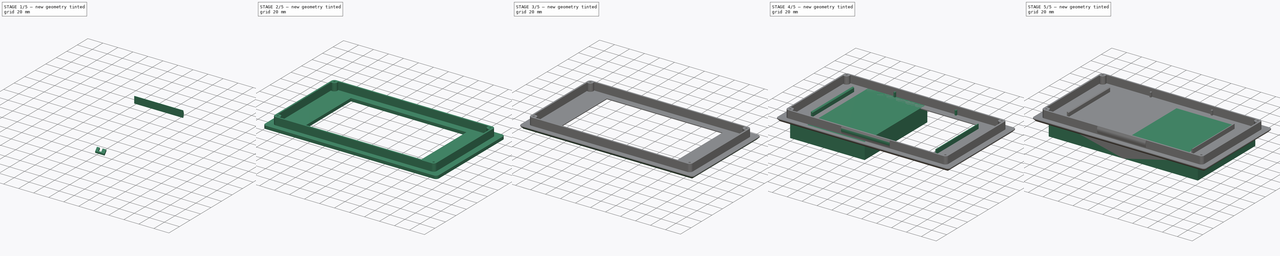
[diagram: build sequence overview — one tinted view per stage of 5, left to right]
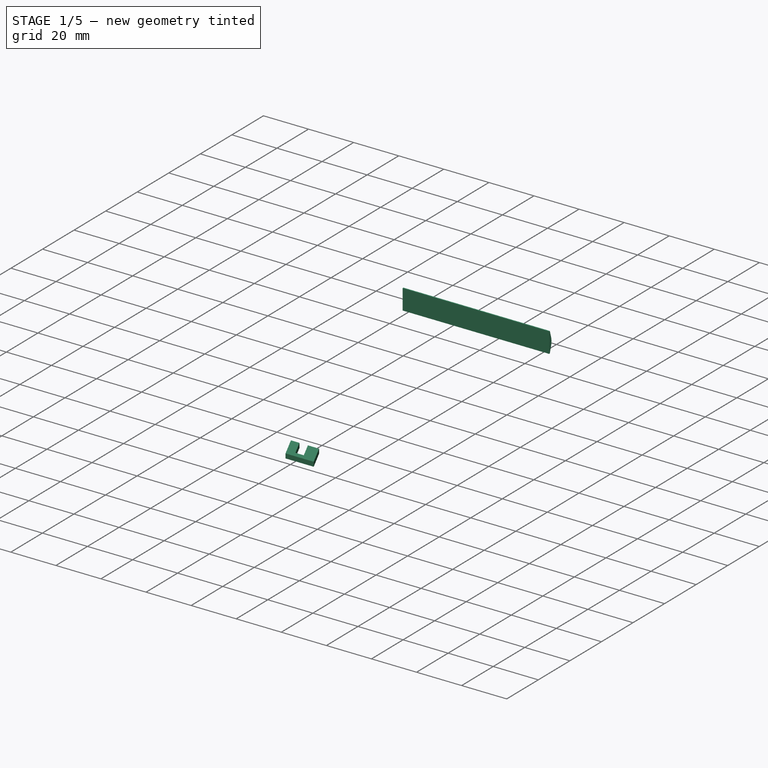
[diagram: stage 1 of 5 — iso view after this stage's code; geometry added in this stage tinted green]
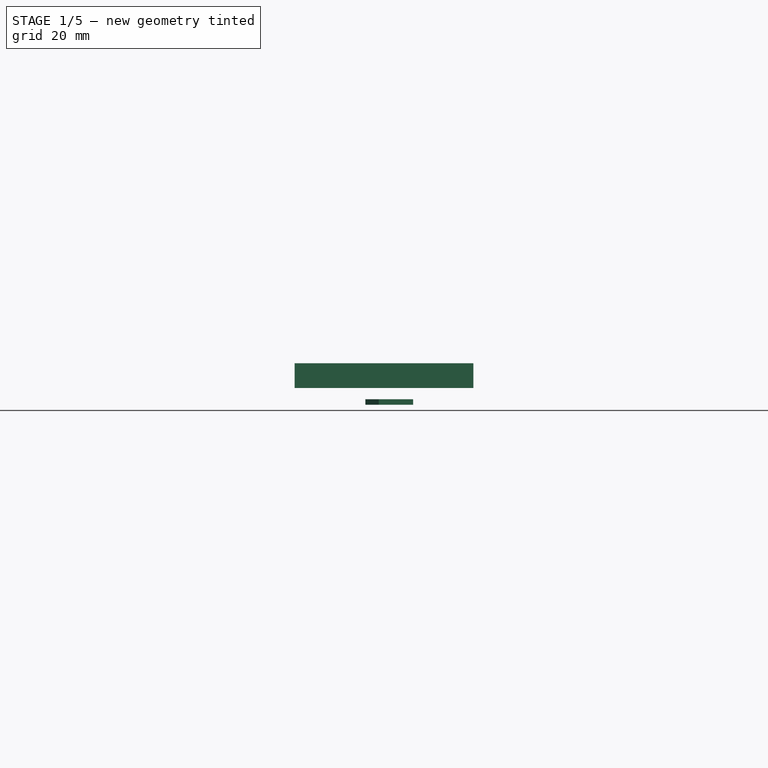
[diagram: stage 1 of 5 — front view after this stage's code; geometry added in this stage tinted green]
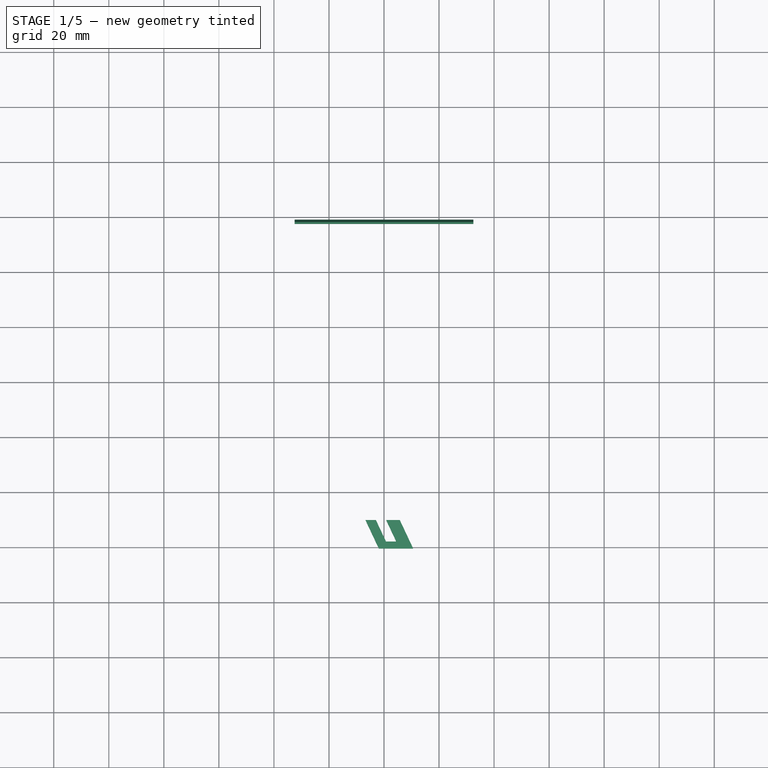
[diagram: stage 1 of 5 — top view after this stage's code; geometry added in this stage tinted green]
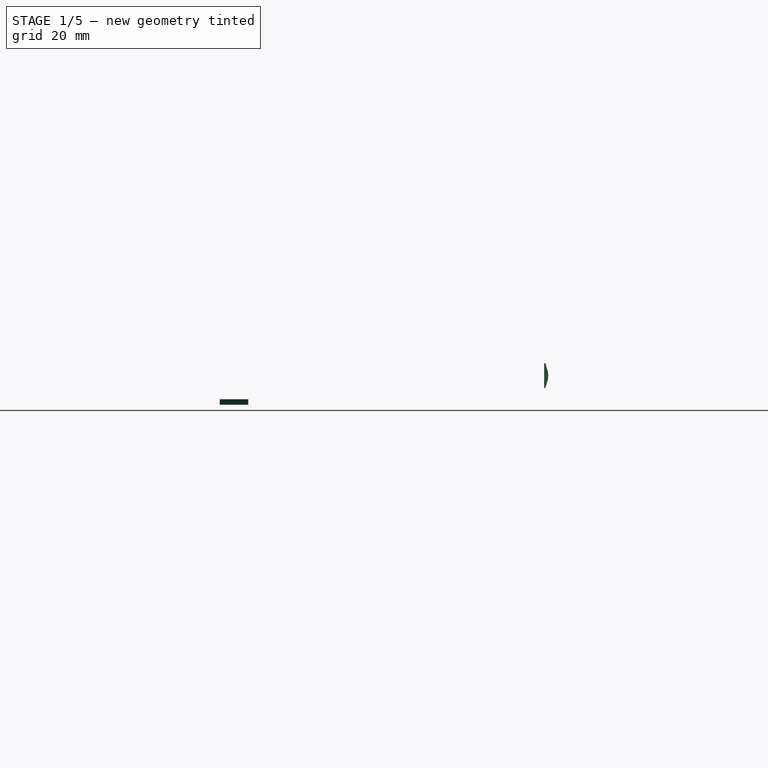
[diagram: stage 1 of 5 — right view after this stage's code; geometry added in this stage tinted green]
FCSTD DOCUMENT  (FreeCAD 0.17R6700 (Git))
Label: enclosure2_front
License: All rights reserved
LicenseURL: http://en.wikipedia.org/wiki/All_rights_reserved
objects: Sketcher::SketchObject×8, PartDesign::Pad×6, Part::Feature×3, Part::Chamfer×3, PartDesign::Pocket×2, Part::Mirroring×2, Part::MultiFuse×2, Part::MultiCommon×1, Part::Extrusion×1, Part::FeaturePython×1, Part::Cut×1
note: 38 computed .brp shape members not serialized (recipe doc carries the construction recipe); baked Part::Feature solids carry a one-line shape summary decoded from their .brp

FEATURE [Part::Feature] Face007
  shape: bbox 86.79 x 51.78 x 2e-07 mm, 1 faces, 0 solids (baked)
FEATURE [Part::Extrusion] Extrude007  label="uv_big"
  Base = -> Face007
  Dir = (0,0,10)
  Placement = pos=(53,0,-9) rot=(0,1,0;3.14159rad)
  Solid = false
FEATURE [Part::FeaturePython] Scale  label="uv_scaled"  # Draft clone (typed FeaturePython)
  Objects = -> [Extrude007]
  Placement = pos=(55,-48,-20.3) rot=(0,1,0;3.14159rad)
  Scale = (0.2,0.2,0.2)
FEATURE [Sketcher::SketchObject] Sketch009
  Placement = pos=(0,0,0) rot=(0.57735,0.57735,0.57735;2.0944rad)
  sketch-geometry (12):
    g0: ArcOfCircle CenterX=-59 CenterY=0 CenterZ=0 NormalX=0 NormalY=0 NormalZ=1 Radius=1 StartAngle=5.99079 EndAngle=6.28319
    g1: ArcOfCircle CenterX=-59 CenterY=-9 CenterZ=0 NormalX=0 NormalY=0 NormalZ=1 Radius=1 StartAngle=0 EndAngle=0.292393
    g2: LineSegment [constr] StartX=-58 StartY=0 StartZ=0 EndX=-58 EndY=-9 EndZ=0
    g3: LineSegment [constr] StartX=-59 StartY=-9 StartZ=0 EndX=-58 EndY=-9 EndZ=0
    g4: LineSegment StartX=-58.0424 StartY=-8.71176 StartZ=0 EndX=-58.7029 EndY=-6.51772 EndZ=0
    g5: LineSegment StartX=-58.0424 StartY=-0.288245 StartZ=0 EndX=-58.7029 EndY=-2.48226 EndZ=0
    g6: ArcOfCircle CenterX=-52 CenterY=-4.5 CenterZ=0 NormalX=0 NormalY=0 NormalZ=1 Radius=7 StartAngle=2.84919 EndAngle=3.43399
    g7: LineSegment [constr] StartX=-58 StartY=-4.5 StartZ=0 EndX=-52 EndY=-4.5 EndZ=0
    g8: LineSegment [constr] StartX=-59 StartY=0 StartZ=0 EndX=-59 EndY=-9 EndZ=0
    g9: LineSegment StartX=-58 StartY=-9 StartZ=0 EndX=-57.5 EndY=-9 EndZ=0
    g10: LineSegment StartX=-57.5 StartY=-9 StartZ=0 EndX=-57.5 EndY=0 EndZ=0
    g11: LineSegment StartX=-57.5 StartY=0 StartZ=0 EndX=-58 EndY=0 EndZ=0
  constraints (39):
    c: PointOnObject(g0,g-1)
    c: PointOnObject(g0,g-1)
    c: Coincident(g2,g0)
    c: Coincident(g2,g1)
    c: Vertical(g2)
    c: DistanceX(g0,g-1) = 58
    c: Equal(g1,g0)
    c: Coincident(g3,g1)
    c: Coincident(g3,g1)
    c: Horizontal(g3)
    c: Coincident(g4,g1)
    c: Coincident(g5,g0)
    c: Coincident(g6,g5)
    c: Coincident(g6,g4)
    c: Tangent(g4,g6)
    c: Tangent(g1,g4)
    c: Tangent(g5,g0)
    c: PointOnObject(g7,g2)
    c: Horizontal(g7)
    c: Symmetric(g1,g0,g7)
    c: PointOnObject(g6,g7)
    c: Coincident(g7,g6)
    c: PointOnObject(g8,g-1)
    c: Vertical(g8)
    c: DistanceX(g8,g0) = 1
    c: DistanceX(g7,g7) = 6
    c: PointOnObject(g8,g3)
    c: Tangent(g6,g8)
    c: Coincident(g1,g8)
    c: DistanceY(g8,g8) = 9
    c: Coincident(g9,g1)
    c: Horizontal(g9)
    c: Coincident(g10,g9)
    c: Vertical(g10)
    c: Coincident(g11,g10)
    c: Horizontal(g11)
    c: Coincident(g0,g11)
    c: DistanceX(g9,g9) = 0.5
    c: Tangent(g6,g5)
FEATURE [PartDesign::Pad] Pad005  label="Pad010"
  Length = 65
  Length2 = 100
  Midplane = true
  Placement = pos=(0,0,0) rot=(0.57735,0.57735,0.57735;2.0944rad)
  Sketch = -> Sketch009
  Type = 0
FEATURE [Part::Mirroring] Part__Mirroring001  label="Pad010 (Mirror #2)"
  Base = (0,0,0)
  Normal = (0,1,0)
  Source = -> Pad005
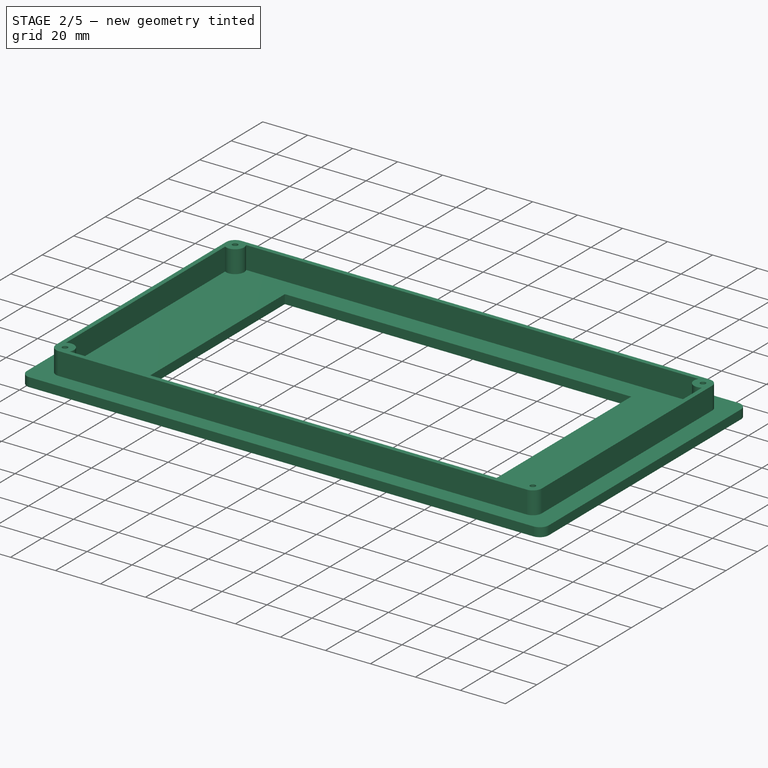
[diagram: stage 2 of 5 — iso view after this stage's code; geometry added in this stage tinted green]
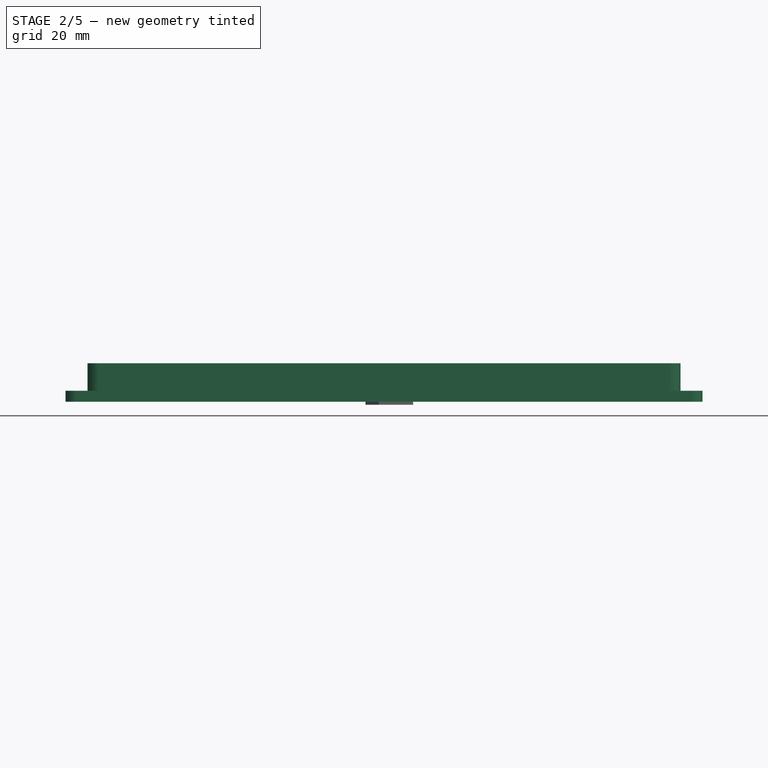
[diagram: stage 2 of 5 — front view after this stage's code; geometry added in this stage tinted green]
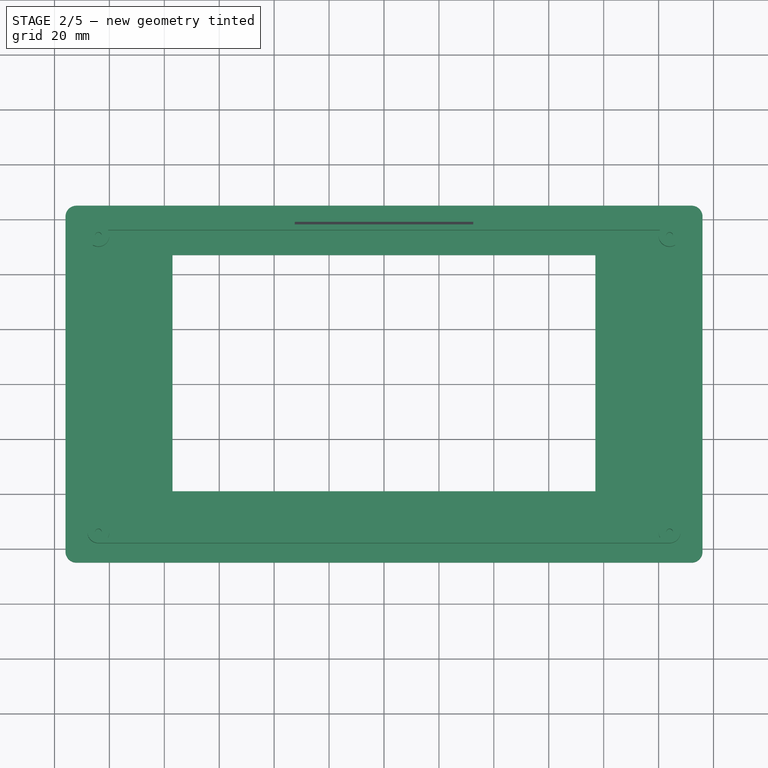
[diagram: stage 2 of 5 — top view after this stage's code; geometry added in this stage tinted green]
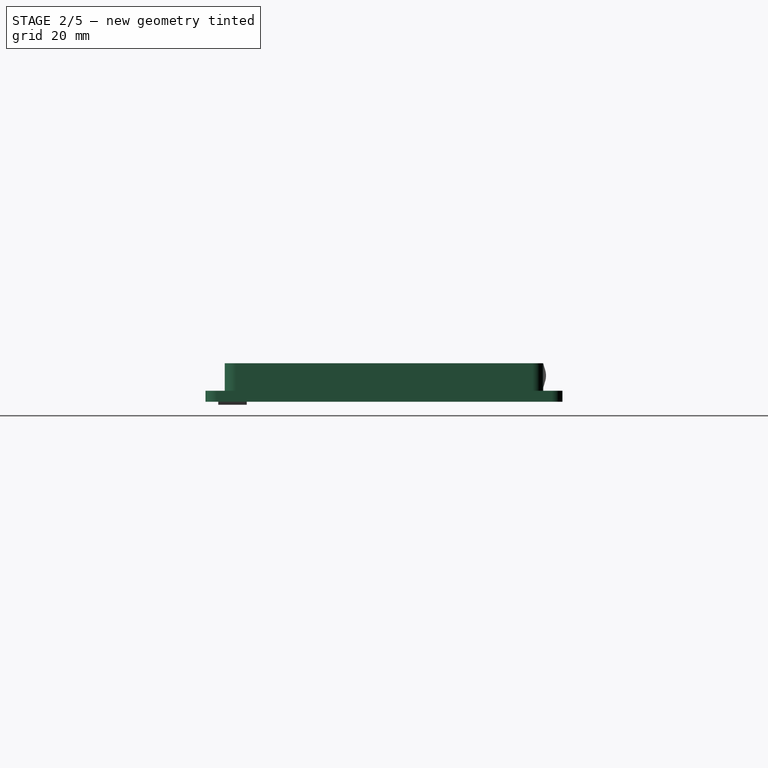
[diagram: stage 2 of 5 — right view after this stage's code; geometry added in this stage tinted green]
FEATURE [Sketcher::SketchObject] Sketch003
  sketch-geometry (8):
    g0: LineSegment StartX=-104 StartY=58 StartZ=0 EndX=104 EndY=58 EndZ=0
    g1: LineSegment StartX=108 StartY=54 StartZ=0 EndX=108 EndY=-54 EndZ=0
    g2: LineSegment StartX=104 StartY=-58 StartZ=0 EndX=-104 EndY=-58 EndZ=0
    g3: LineSegment StartX=-108 StartY=-54 StartZ=0 EndX=-108 EndY=54 EndZ=0
    g4: ArcOfCircle CenterX=104 CenterY=-54 CenterZ=0 NormalX=0 NormalY=0 NormalZ=1 Radius=4 StartAngle=4.71239 EndAngle=6.28319
    g5: ArcOfCircle CenterX=-104 CenterY=-54 CenterZ=0 NormalX=0 NormalY=0 NormalZ=1 Radius=4 StartAngle=3.14159 EndAngle=4.71239
    g6: ArcOfCircle CenterX=-104 CenterY=54 CenterZ=0 NormalX=0 NormalY=0 NormalZ=1 Radius=4 StartAngle=1.5708 EndAngle=3.14159
    g7: ArcOfCircle CenterX=104 CenterY=54 CenterZ=0 NormalX=0 NormalY=0 NormalZ=1 Radius=4 StartAngle=0 EndAngle=1.5708
  constraints (18):
    c: Horizontal(g2)
    c: Vertical(g1)
    c: Tangent(g1,g4) = 1.5708
    c: Tangent(g2,g4) = 1.5708
    c: Tangent(g2,g5) = 1.5708
    c: Tangent(g3,g5) = 1.5708
    c: Tangent(g3,g6) = 1.5708
    c: Tangent(g0,g6) = 1.5708
    c: Tangent(g0,g7) = 1.5708
    c: Tangent(g1,g7) = 1.5708
    c: Symmetric(g1,g3,g-2)
    c: Symmetric(g0,g2,g-1)
    c: Equal(g4,g7)
    c: Equal(g7,g6)
    c: Equal(g6,g5)
    c: Radius(g6) = 4
    c: DistanceY(g2,g0) = 116
    c: DistanceX(g3,g1) = 216
FEATURE [Part::Feature] Part__Feature  label="display"
  Placement = pos=(-76.92,-38.815,-10) rot=(0,0,1;0rad)
  shape: bbox 165 x 107 x 4.7 mm, 16 faces (baked)
FEATURE [Part::Feature] Part__Feature001  label="pcb"
  Placement = pos=(26.6612,-3.4798,0) rot=(0,0,1;3.14159rad)
  shape: bbox 87.31 x 61.33 x 37.48 mm, 5234 faces (baked)
FEATURE [PartDesign::Pad] Pad
  Length = 10
  Length2 = 100
  Reversed = true
  Sketch = -> Sketch003
  Type = 0
FEATURE [Sketcher::SketchObject] Sketch
  ExternalGeometry = -> [Pad]
  Support = -> Pad [Face9]
  sketch-geometry (20):
    g0: LineSegment StartX=-100.536 StartY=56 StartZ=0 EndX=100.536 EndY=56 EndZ=0
    g1: LineSegment StartX=106 StartY=50.5359 StartZ=0 EndX=106 EndY=-50.5359 EndZ=0
    g2: LineSegment StartX=100.536 StartY=-56 StartZ=0 EndX=-100.536 EndY=-56 EndZ=0
    g3: LineSegment StartX=-106 StartY=-50.5359 StartZ=0 EndX=-106 EndY=50.5359 EndZ=0
    g4: ArcOfCircle CenterX=-104 CenterY=54 CenterZ=0 NormalX=0 NormalY=0 NormalZ=1 Radius=4 StartAngle=4.18879 EndAngle=6.80678
    g5: ArcOfCircle CenterX=-104 CenterY=-54 CenterZ=0 NormalX=0 NormalY=0 NormalZ=1 Radius=4 StartAngle=5.75959 EndAngle=8.37758
    g6: ArcOfCircle CenterX=104 CenterY=-54 CenterZ=0 NormalX=0 NormalY=0 NormalZ=1 Radius=4 StartAngle=1.0472 EndAngle=3.66519
    g7: ArcOfCircle CenterX=104 CenterY=54 CenterZ=0 NormalX=0 NormalY=0 NormalZ=1 Radius=4 StartAngle=2.61799 EndAngle=5.23599
    g8: LineSegment [constr] StartX=104 StartY=54 StartZ=0 EndX=104 EndY=58 EndZ=0
    g9: LineSegment [constr] StartX=108 StartY=54 StartZ=0 EndX=104 EndY=54 EndZ=0
    g10: LineSegment [constr] StartX=104 StartY=-54 StartZ=0 EndX=108 EndY=-54 EndZ=0
    g11: LineSegment [constr] StartX=104 StartY=-54 StartZ=0 EndX=104 EndY=-58 EndZ=0
    g12: LineSegment [constr] StartX=-104 StartY=-58 StartZ=0 EndX=-104 EndY=-54 EndZ=0
    g13: LineSegment [constr] StartX=-108 StartY=-54 StartZ=0 EndX=-104 EndY=-54 EndZ=0
    g14: LineSegment [constr] StartX=-108 StartY=54 StartZ=0 EndX=-104 EndY=54 EndZ=0
    g15: LineSegment [constr] StartX=-104 StartY=58 StartZ=0 EndX=-104 EndY=54 EndZ=0
    g16: Circle CenterX=-104 CenterY=54 CenterZ=0 NormalX=0 NormalY=0 NormalZ=1 Radius=1.2
    g17: Circle CenterX=-104 CenterY=-54 CenterZ=0 NormalX=0 NormalY=0 NormalZ=1 Radius=1.2
    g18: Circle CenterX=104 CenterY=-54 CenterZ=0 NormalX=0 NormalY=0 NormalZ=1 Radius=1.2
    g19: Circle CenterX=104 CenterY=54 CenterZ=0 NormalX=0 NormalY=0 NormalZ=1 Radius=1.2
  constraints (52):
    c: Horizontal(g0)
    c: Vertical(g1)
    c: Horizontal(g2)
    c: Vertical(g3)
    c: Coincident(g4,g3)
    c: Coincident(g4,g0)
    c: Coincident(g5,g3)
    c: Coincident(g5,g2)
    c: Coincident(g6,g2)
    c: Coincident(g6,g1)
    c: Coincident(g7,g1)
    c: Coincident(g7,g0)
    c: Coincident(g8,g7)
    c: Coincident(g7,g9)
    c: Coincident(g9,g-6)
    c: Coincident(g8,g-3)
    c: Vertical(g8)
    c: Horizontal(g9)
    c: Coincident(g10,g6)
    c: Coincident(g10,g-6)
    c: Coincident(g11,g6)
    c: Vertical(g11)
    c: Coincident(g11,g-5)
    c: Horizontal(g10)
    c: Coincident(g12,g-5)
    c: Vertical(g12)
    c: Coincident(g13,g12)
    c: Horizontal(g13)
    c: Coincident(g13,g-4)
    c: Coincident(g5,g12)
    c: Coincident(g14,g-4)
    c: Coincident(g14,g4)
    c: Coincident(g15,g-3)
    c: Coincident(g15,g4)
    c: Horizontal(g14)
    c: Vertical(g15)
    c: Equal(g4,g5)
    c: Equal(g5,g6)
    c: Equal(g6,g7)
    c: Equal(g-7,g4)
    c: DistanceX(g14,g3) = 2
    c: DistanceY(g0,g15) = 2
    c: DistanceY(g12,g2) = 2
    c: DistanceX(g1,g10) = 2
    c: Coincident(g16,g4)
    c: Coincident(g19,g7)
    c: Equal(g19,g18)
    c: Equal(g18,g17)
    c: Equal(g17,g16)
    c: Coincident(g5,g17)
    c: Coincident(g6,g18)
    c: Radius(g19) = 1.2
FEATURE [PartDesign::Pocket] Pocket
  Length = 5
  Sketch = -> Sketch
  Type = 1
FEATURE [Sketcher::SketchObject] Sketch004
  ExternalGeometry = -> [Pocket]
  Placement = pos=(0,0,-10) rot=(1,0,0;3.14159rad)
  Support = -> Pocket [Face5]
  sketch-geometry (8):
    g0: LineSegment StartX=-112 StartY=65 StartZ=0 EndX=112 EndY=65 EndZ=0
    g1: LineSegment StartX=116 StartY=61 StartZ=0 EndX=116 EndY=-61 EndZ=0
    g2: LineSegment StartX=112 StartY=-65 StartZ=0 EndX=-112 EndY=-65 EndZ=0
    g3: LineSegment StartX=-116 StartY=-61 StartZ=0 EndX=-116 EndY=61 EndZ=0
    g4: ArcOfCircle CenterX=112 CenterY=-61 CenterZ=0 NormalX=0 NormalY=0 NormalZ=1 Radius=4 StartAngle=4.71239 EndAngle=6.28319
    g5: ArcOfCircle CenterX=-112 CenterY=-61 CenterZ=0 NormalX=0 NormalY=0 NormalZ=1 Radius=4 StartAngle=3.14159 EndAngle=4.71239
    g6: ArcOfCircle CenterX=-112 CenterY=61 CenterZ=0 NormalX=0 NormalY=0 NormalZ=1 Radius=4 StartAngle=1.5708 EndAngle=3.14159
    g7: ArcOfCircle CenterX=112 CenterY=61 CenterZ=0 NormalX=0 NormalY=0 NormalZ=1 Radius=4 StartAngle=0 EndAngle=1.5708
  constraints (20):
    c: Horizontal(g0)
    c: Horizontal(g2)
    c: Vertical(g1)
    c: Vertical(g3)
    c: Tangent(g1,g4) = 1.5708
    c: Tangent(g2,g4) = 1.5708
    c: Tangent(g3,g5) = 1.5708
    c: Tangent(g2,g5) = 1.5708
    c: Tangent(g3,g6) = 1.5708
    c: Tangent(g0,g6) = 1.5708
    c: Tangent(g0,g7) = 1.5708
    c: Tangent(g1,g7) = 1.5708
    c: Equal(g6,g5)
    c: Equal(g5,g4)
    c: Equal(g4,g7)
    c: DistanceY(g2,g-10) = 7
    c: DistanceY(g-7,g0) = 7
    c: DistanceX(g-9,g1) = 8
    c: DistanceX(g3,g-8) = 8
    c: Radius(g5) = 4
FEATURE [PartDesign::Pad] Pad001  label="Pad006"
  Length = 4
  Length2 = 100
  Sketch = -> Sketch004
  Type = 0
FEATURE [Sketcher::SketchObject] Sketch007
  Placement = pos=(0,0,-14) rot=(1,0,0;3.14159rad)
  Support = -> Pad001 [Face36]
  sketch-geometry (4):
    g0: LineSegment StartX=-77 StartY=39 StartZ=0 EndX=77 EndY=39 EndZ=0
    g1: LineSegment StartX=77 StartY=39 StartZ=0 EndX=77 EndY=-47 EndZ=0
    g2: LineSegment StartX=77 StartY=-47 StartZ=0 EndX=-77 EndY=-47 EndZ=0
    g3: LineSegment StartX=-77 StartY=-47 StartZ=0 EndX=-77 EndY=39 EndZ=0
  constraints (12):
    c: Coincident(g0,g1)
    c: Coincident(g1,g2)
    c: Coincident(g2,g3)
    c: Coincident(g3,g0)
    c: Horizontal(g0)
    c: Horizontal(g2)
    c: Vertical(g1)
    c: Vertical(g3)
    c: DistanceX(g2,g2) = 154
    c: DistanceY(g1,g1) = 86
    c: Symmetric(g1,g2,g-2)
    c: DistanceY(g2,g-1) = 47
FEATURE [PartDesign::Pocket] Pocket001
  Length = 5
  Sketch = -> Sketch007
  Type = 1
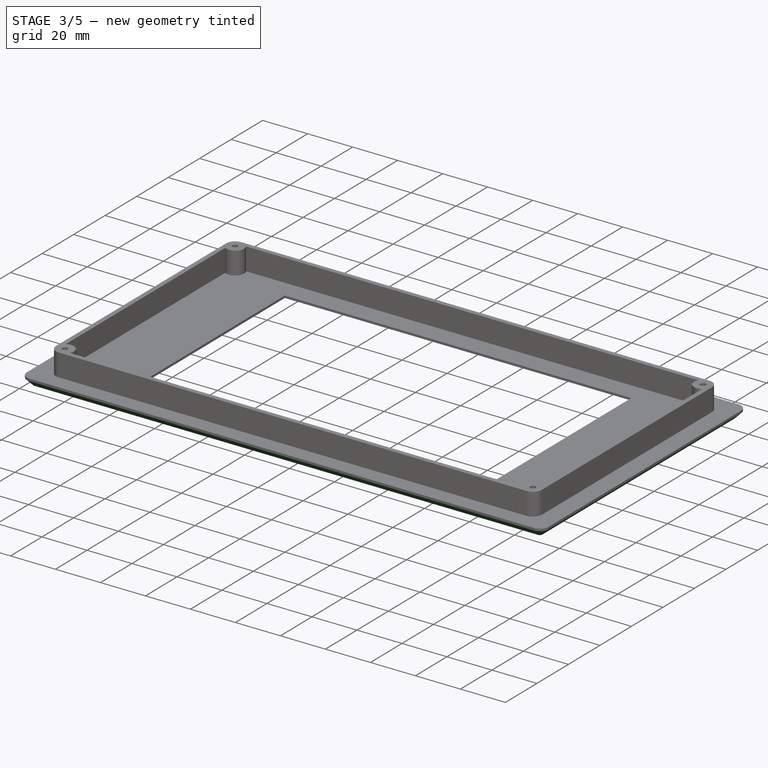
[diagram: stage 3 of 5 — iso view after this stage's code; geometry added in this stage tinted green]
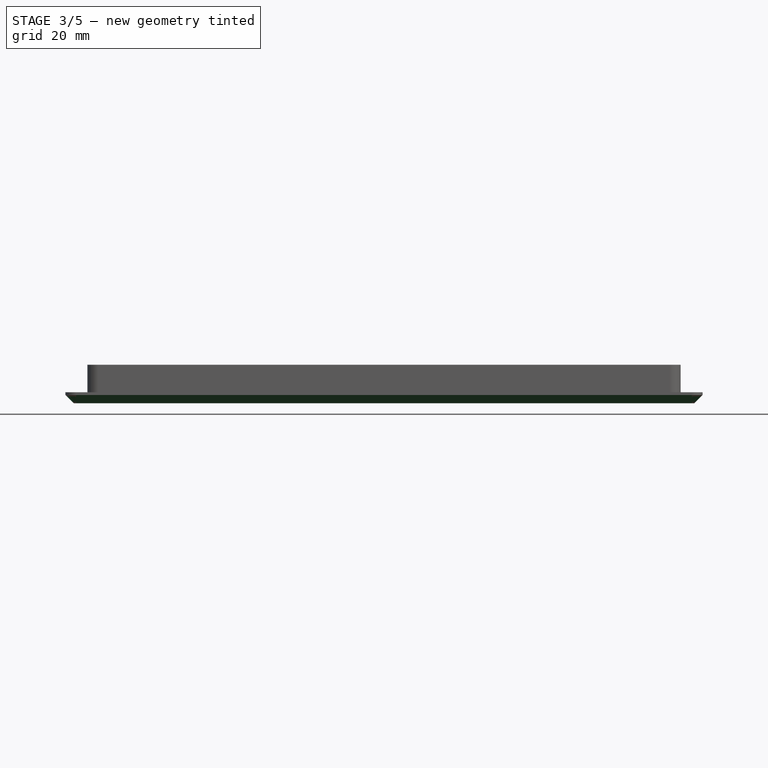
[diagram: stage 3 of 5 — front view after this stage's code; geometry added in this stage tinted green]
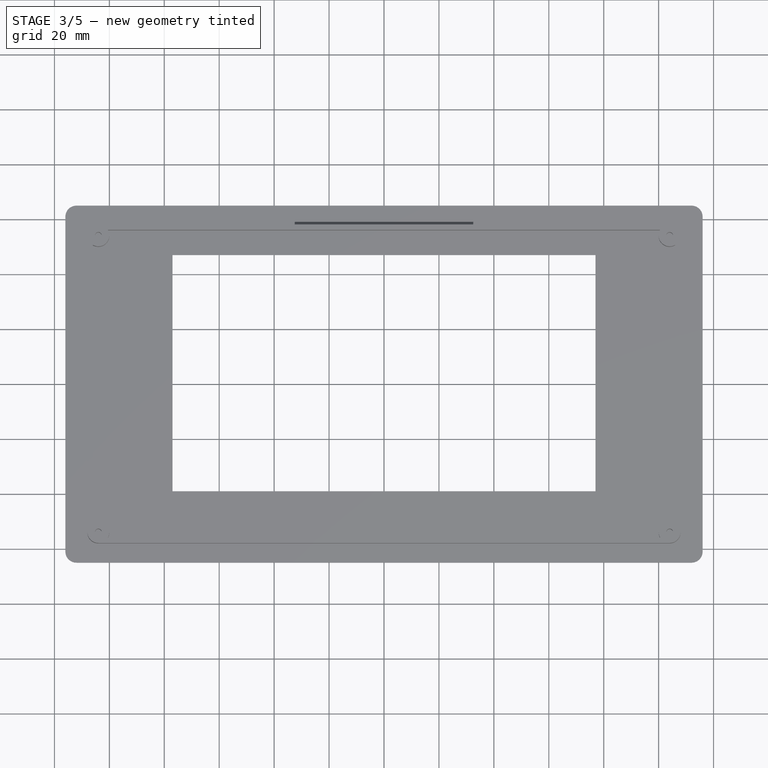
[diagram: stage 3 of 5 — top view after this stage's code; geometry added in this stage tinted green]
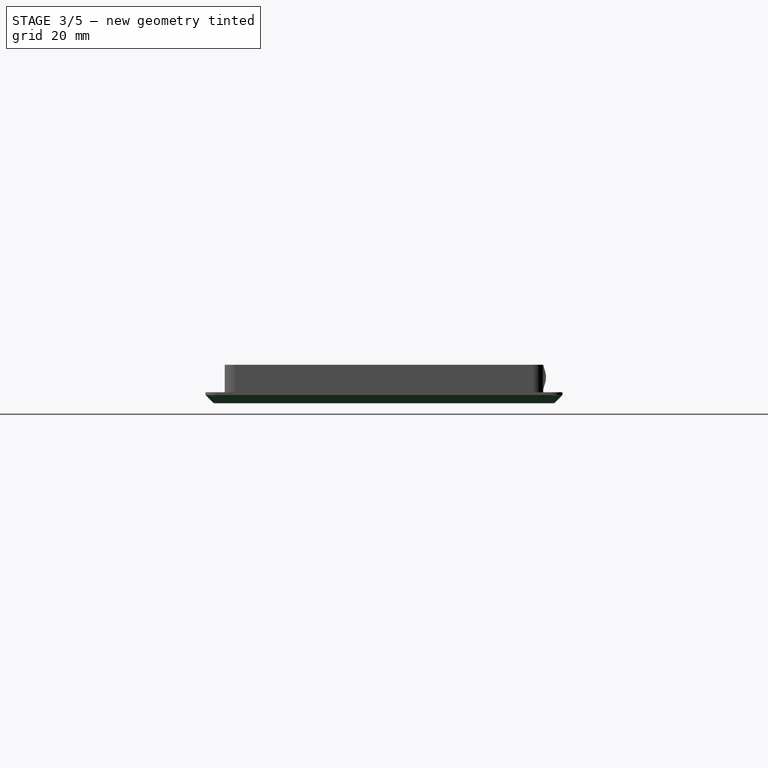
[diagram: stage 3 of 5 — right view after this stage's code; geometry added in this stage tinted green]
FEATURE [Part::Chamfer] Chamfer
  Base = -> Pocket001
  Edges = 4 edges: [Edge89 r1=3 r2=10,Edge92 r1=3 r2=10,Edge94 r1=3 r2=10,Edge96 r1=3 r2=10]
FEATURE [Part::Chamfer] Chamfer001
  Base = -> Chamfer
  Edges = 1 edges r=3: [Edge33]
FEATURE [Part::Cut] Cut
  Base = -> Chamfer001
  Tool = -> Scale
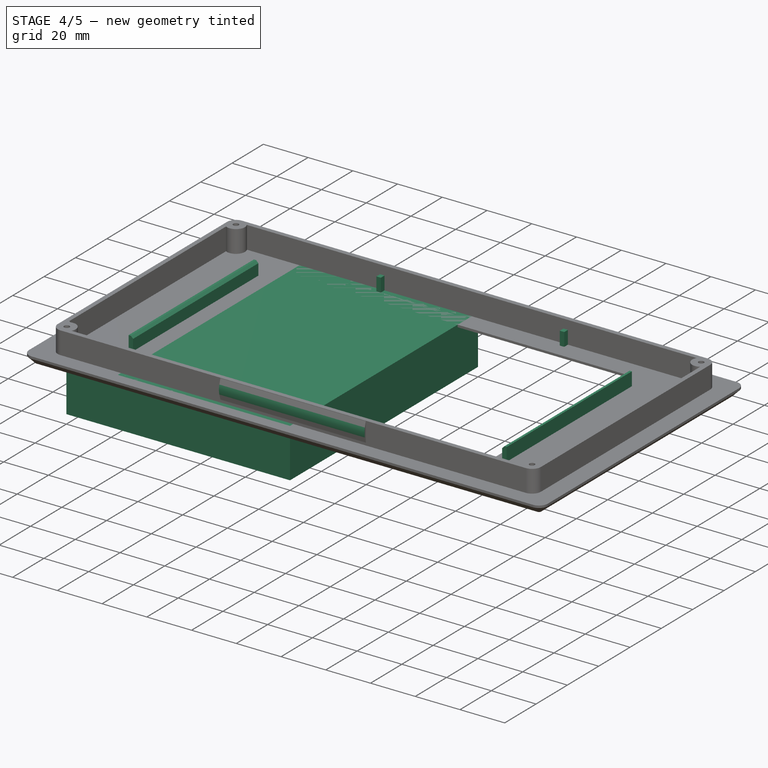
[diagram: stage 4 of 5 — iso view after this stage's code; geometry added in this stage tinted green]
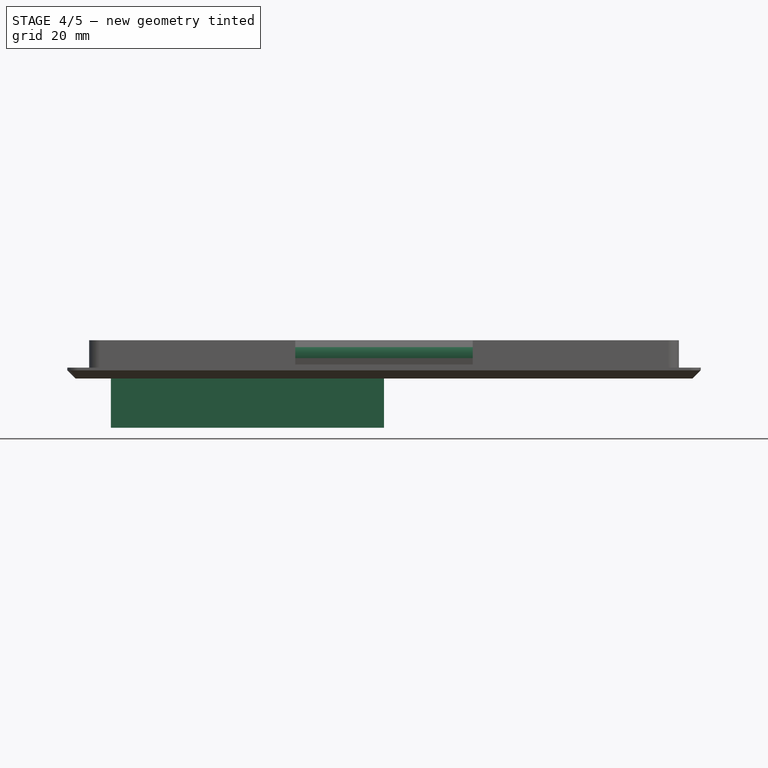
[diagram: stage 4 of 5 — front view after this stage's code; geometry added in this stage tinted green]
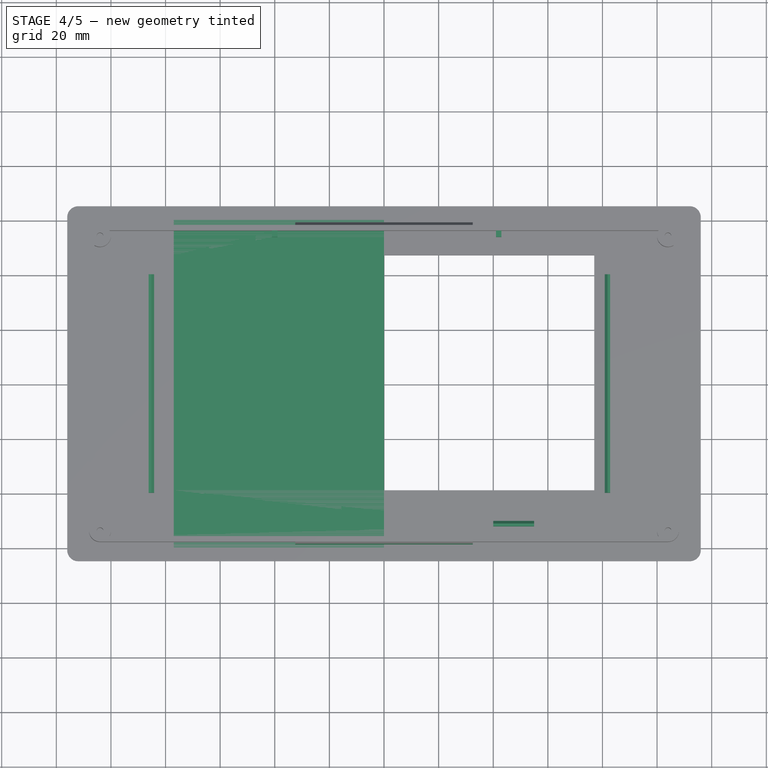
[diagram: stage 4 of 5 — top view after this stage's code; geometry added in this stage tinted green]
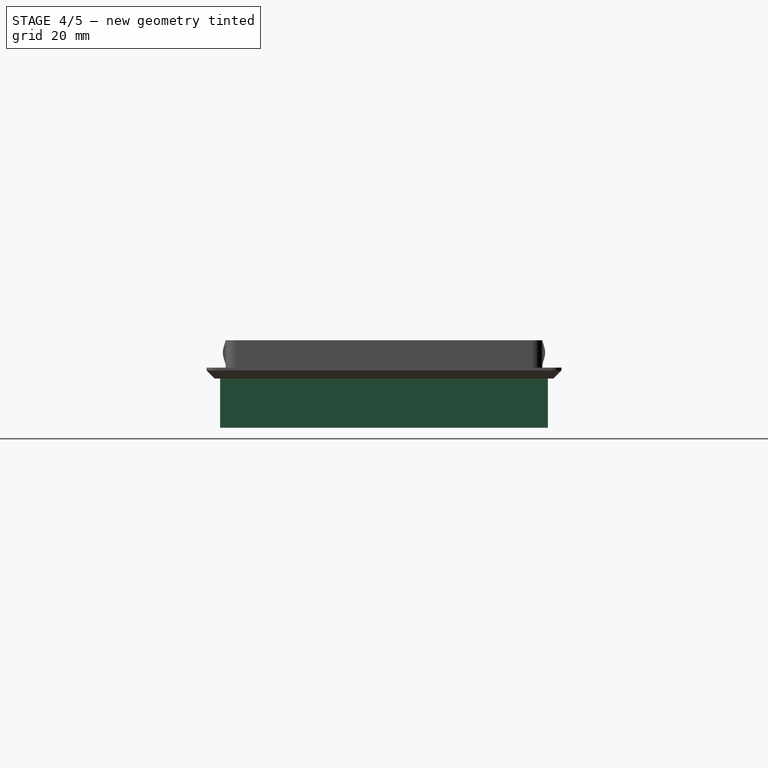
[diagram: stage 4 of 5 — right view after this stage's code; geometry added in this stage tinted green]
FEATURE [PartDesign::Pad] Pad003  label="Pad008"
  Length = 120
  Length2 = 100
  Midplane = true
  Placement = pos=(0,0,0) rot=(1,0,0;1.5708rad)
  Sketch = -> Sketch005
  Type = 0
FEATURE [Sketcher::SketchObject] Sketch008
  Placement = pos=(0,0,-10) rot=(0,0,1;0rad)
  Support = -> Cut [Face36]
  sketch-geometry (20):
    g0: LineSegment StartX=-86.18 StartY=40 StartZ=0 EndX=-84.18 EndY=40 EndZ=0
    g1: LineSegment StartX=-84.18 StartY=40 StartZ=0 EndX=-84.18 EndY=-40 EndZ=0
    g2: LineSegment StartX=-84.18 StartY=-40 StartZ=0 EndX=-86.18 EndY=-40 EndZ=0
    g3: LineSegment StartX=-86.18 StartY=-40 StartZ=0 EndX=-86.18 EndY=40 EndZ=0
    g4: LineSegment StartX=80.83 StartY=40 StartZ=0 EndX=82.83 EndY=40 EndZ=0
    g5: LineSegment StartX=82.83 StartY=40 StartZ=0 EndX=82.83 EndY=-40 EndZ=0
    g6: LineSegment StartX=82.83 StartY=-40 StartZ=0 EndX=80.83 EndY=-40 EndZ=0
    g7: LineSegment StartX=80.83 StartY=-40 StartZ=0 EndX=80.83 EndY=40 EndZ=0
    g8: LineSegment StartX=-39 StartY=56.68 StartZ=0 EndX=-41 EndY=56.68 EndZ=0
    g9: LineSegment StartX=-41 StartY=56.68 StartZ=0 EndX=-41 EndY=53.68 EndZ=0
    g10: LineSegment StartX=-41 StartY=53.68 StartZ=0 EndX=-39 EndY=53.68 EndZ=0
    g11: LineSegment StartX=-39 StartY=53.68 StartZ=0 EndX=-39 EndY=56.68 EndZ=0
    g12: LineSegment StartX=41 StartY=56.68 StartZ=0 EndX=43 EndY=56.68 EndZ=0
    g13: LineSegment StartX=43 StartY=56.68 StartZ=0 EndX=43 EndY=53.68 EndZ=0
    g14: LineSegment StartX=43 StartY=53.68 StartZ=0 EndX=41 EndY=53.68 EndZ=0
    g15: LineSegment StartX=41 StartY=53.68 StartZ=0 EndX=41 EndY=56.68 EndZ=0
    g16: LineSegment StartX=40 StartY=-50.32 StartZ=0 EndX=55 EndY=-50.32 EndZ=0
    g17: LineSegment StartX=55 StartY=-50.32 StartZ=0 EndX=55 EndY=-52.32 EndZ=0
    g18: LineSegment StartX=55 StartY=-52.32 StartZ=0 EndX=40 EndY=-52.32 EndZ=0
    g19: LineSegment StartX=40 StartY=-52.32 StartZ=0 EndX=40 EndY=-50.32 EndZ=0
  constraints (59):
    c: Coincident(g0,g1)
    c: Coincident(g1,g2)
    c: Coincident(g2,g3)
    c: Coincident(g3,g0)
    c: Horizontal(g0)
    c: Horizontal(g2)
    c: Vertical(g1)
    c: Vertical(g3)
    c: Symmetric(g2,g0,g-1)
    c: DistanceX(g0,g0) = 2
    c: DistanceY(g3,g3) = 80
    c: DistanceX(g0,g-1) = 84.18
    c: Coincident(g4,g5)
    c: Coincident(g5,g6)
    c: Coincident(g6,g7)
    c: Coincident(g7,g4)
    c: Horizontal(g4)
    c: Horizontal(g6)
    c: Vertical(g5)
    c: Vertical(g7)
    c: Equal(g6,g2)
    c: Equal(g1,g7)
    c: Symmetric(g6,g4,g-1)
    c: DistanceX(g-1,g4) = 80.83
    c: Coincident(g8,g9)
    c: Coincident(g9,g10)
    c: Coincident(g10,g11)
    c: Coincident(g11,g8)
    c: Horizontal(g8)
    c: Horizontal(g10)
    c: Vertical(g9)
    c: Vertical(g11)
    c: Coincident(g12,g13)
    c: Coincident(g13,g14)
    c: Coincident(g14,g15)
    c: Coincident(g15,g12)
    c: Horizontal(g12)
    c: Horizontal(g14)
    c: Vertical(g13)
    c: Vertical(g15)
    c: Equal(g15,g9)
    c: Equal(g8,g12)
    c: DistanceX(g12,g12) = 2
    c: DistanceY(g11,g11) = 3
    c: Symmetric(g9,g14,g-2)
    c: DistanceX(g10,g14) = 80
    c: DistanceY(g-1,g10) = 53.68
    c: Coincident(g16,g17)
    c: Coincident(g17,g18)
    c: Coincident(g18,g19)
    c: Coincident(g19,g16)
    c: Horizontal(g16)
    c: Horizontal(g18)
    c: Vertical(g17)
    c: Vertical(g19)
    c: DistanceY(g17,g17) = 2
    c: DistanceX(g18,g18) = 15
    c: DistanceX(g-1,g16) = 40
    c: DistanceY(g16,g-1) = 50.32
FEATURE [PartDesign::Pad] Pad004  label="Pad009"
  Length = 6
  Length2 = 100
  Sketch = -> Sketch008
  Type = 0
FEATURE [Part::Chamfer] Chamfer002
  Base = -> Pad004
  Edges = 5 edges r=1: [Edge161,Edge167,Edge176,Edge178,Edge192]
FEATURE [Part::MultiFuse] Fusion001
  Shapes = -> [Pad005,Part__Mirroring001,Chamfer002]
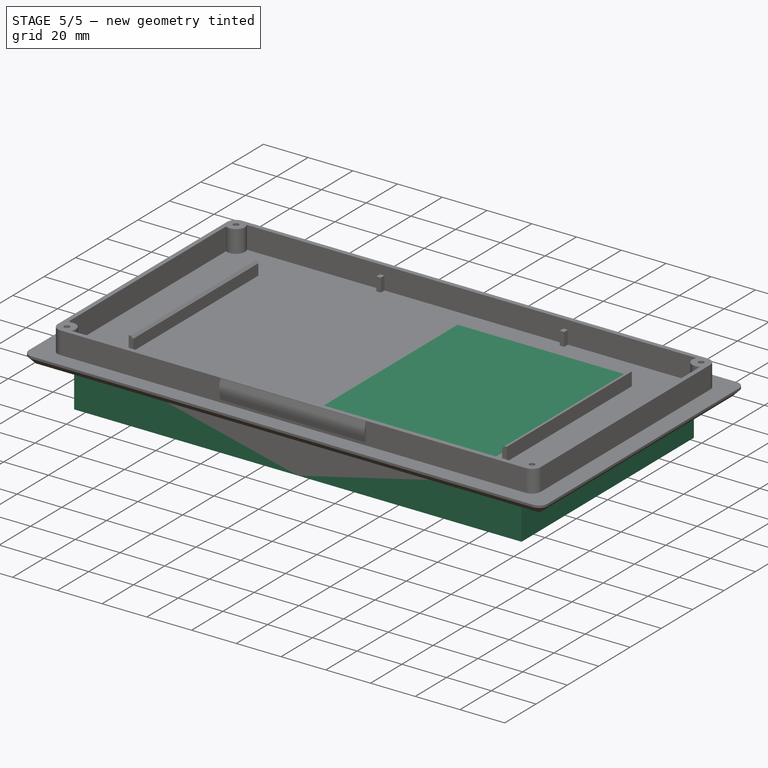
[diagram: stage 5 of 5 — iso view after this stage's code; geometry added in this stage tinted green]
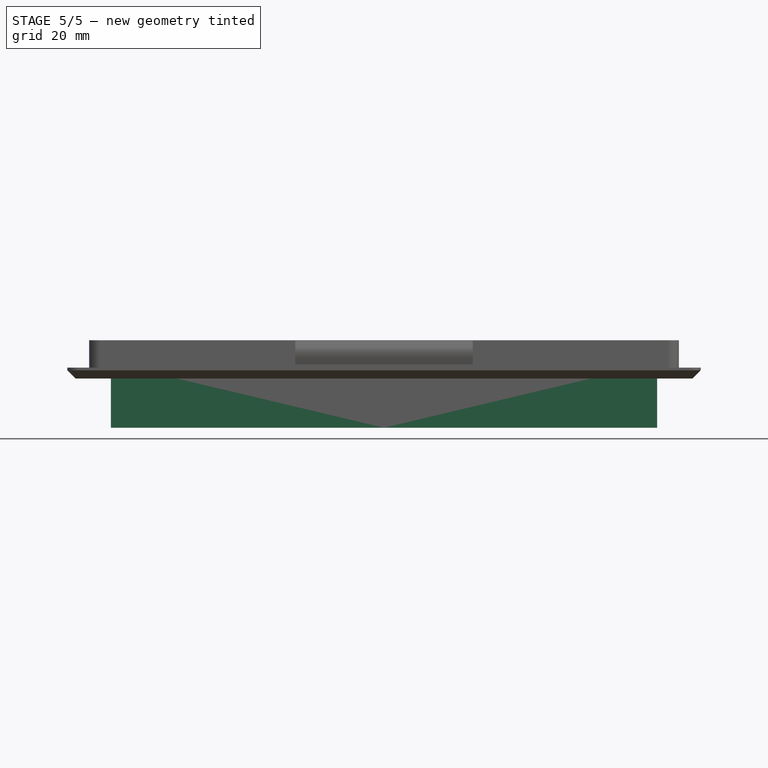
[diagram: stage 5 of 5 — front view after this stage's code; geometry added in this stage tinted green]
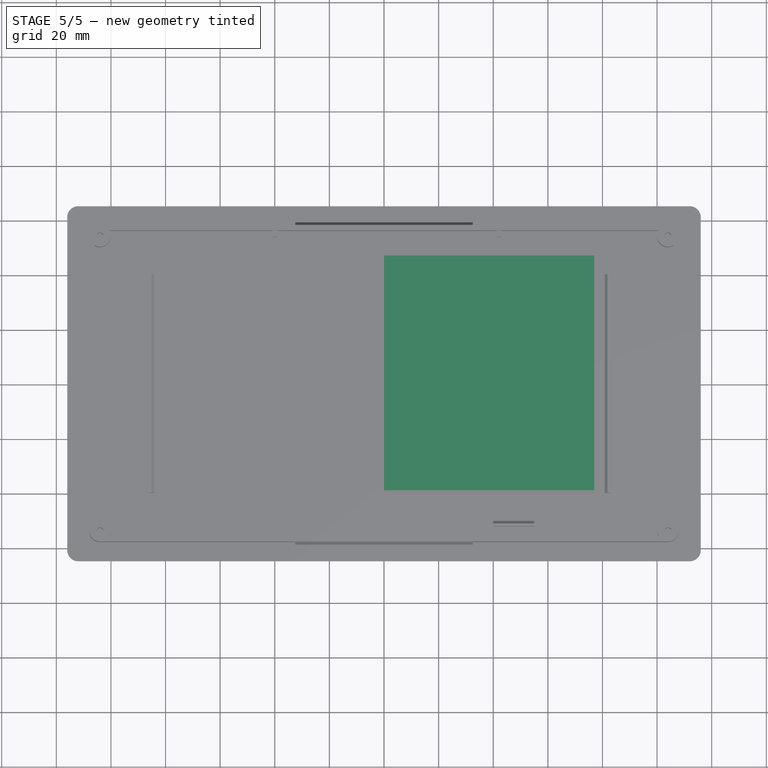
[diagram: stage 5 of 5 — top view after this stage's code; geometry added in this stage tinted green]
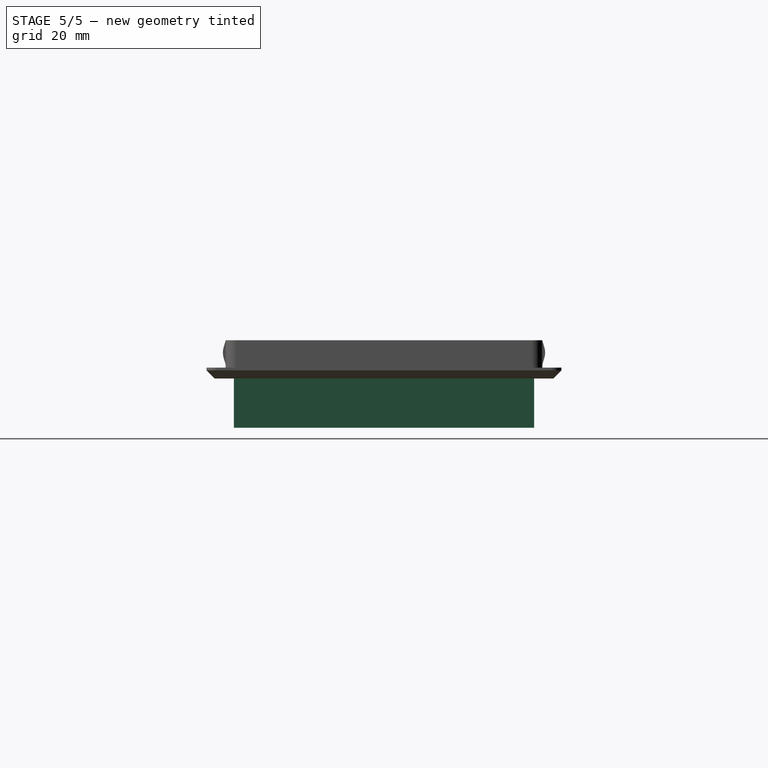
[diagram: stage 5 of 5 — right view after this stage's code; geometry added in this stage tinted green]
FEATURE [Sketcher::SketchObject] Sketch006
  Placement = pos=(0,0,0.0001) rot=(0.57735,0.57735,0.57735;2.0944rad)
  sketch-geometry (13):
    g0: LineSegment [constr] StartX=-39 StartY=-10 StartZ=0 EndX=47 EndY=-10 EndZ=0
    g1: ArcOfCircle CenterX=-42 CenterY=-10 CenterZ=0 NormalX=0 NormalY=0 NormalZ=1 Radius=3 StartAngle=4.71239 EndAngle=6.28319
    g2: LineSegment [constr] StartX=-42 StartY=-13 StartZ=0 EndX=-42 EndY=0 EndZ=0
    g3: LineSegment [constr] StartX=-39 StartY=-10 StartZ=0 EndX=-56 EndY=-10 EndZ=0
    g4: ArcOfCircle CenterX=50 CenterY=-10 CenterZ=0 NormalX=0 NormalY=0 NormalZ=1 Radius=3 StartAngle=3.14159 EndAngle=4.71239
    g5: LineSegment [constr] StartX=47 StartY=-10 StartZ=0 EndX=57 EndY=-10 EndZ=0
    g6: LineSegment [constr] StartX=50 StartY=-13 StartZ=0 EndX=50 EndY=0 EndZ=0
    g7: LineSegment StartX=-39 StartY=-10 StartZ=0 EndX=47 EndY=-10 EndZ=0
    g8: LineSegment StartX=-55 StartY=-13 StartZ=0 EndX=-55 EndY=-33 EndZ=0
    g9: LineSegment StartX=-55 StartY=-33 StartZ=0 EndX=55 EndY=-33 EndZ=0
    g10: LineSegment StartX=55 StartY=-33 StartZ=0 EndX=55 EndY=-13 EndZ=0
    g11: LineSegment StartX=-55 StartY=-13 StartZ=0 EndX=-42 EndY=-13 EndZ=0
    g12: LineSegment StartX=55 StartY=-13 StartZ=0 EndX=50 EndY=-13 EndZ=0
  constraints (40):
    c: DistanceX(g-1,g0) = 47
    c: DistanceX(g0,g-1) = 39
    c: DistanceY(g0,g-1) = 10
    c: Coincident(g1,g0)
    c: Coincident(g2,g1)
    c: Vertical(g2)
    c: PointOnObject(g1,g2)
    c: Radius(g1) = 3
    c: Coincident(g3,g0)
    c: Horizontal(g3)
    c: PointOnObject(g1,g3)
    c: DistanceX(g3,g3) = 17
    c: Coincident(g6,g4)
    c: Vertical(g6)
    c: PointOnObject(g4,g6)
    c: Radius(g4) = 3
    c: Horizontal(g5)
    c: PointOnObject(g4,g5)
    c: Coincident(g4,g5)
    c: DistanceY(g4,g-1) = 10
    c: Coincident(g0,g4)
    c: DistanceX(g5,g5) = 10
    c: Coincident(g0,g7)
    c: Coincident(g7,g0)
    c: Vertical(g8)
    c: Coincident(g8,g9)
    c: Horizontal(g9)
    c: Coincident(g9,g10)
    c: Vertical(g10)
    c: DistanceY(g10,g10) = 20
    c: Coincident(g11,g1)
    c: Horizontal(g11)
    c: Coincident(g8,g11)
    c: Coincident(g12,g10)
    c: Coincident(g12,g4)
    c: Horizontal(g12)
    c: DistanceX(g9,g9) = 110
    c: DistanceX(g12,g12) = 5
    c: PointOnObject(g2,g-1)
    c: PointOnObject(g6,g-1)
FEATURE [Sketcher::SketchObject] Sketch005
  Placement = pos=(0,0,0) rot=(1,0,0;1.5708rad)
  sketch-geometry (9):
    g0: LineSegment [constr] StartX=0 StartY=-10 StartZ=0 EndX=-77 EndY=-10 EndZ=0
    g1: ArcOfCircle CenterX=-80 CenterY=-10 CenterZ=0 NormalX=0 NormalY=0 NormalZ=1 Radius=3 StartAngle=4.71239 EndAngle=6.28319
    g2: LineSegment [constr] StartX=-77 StartY=-10 StartZ=0 EndX=-97 EndY=-10 EndZ=0
    g3: LineSegment [constr] StartX=-80 StartY=-13 StartZ=0 EndX=-80 EndY=0 EndZ=0
    g4: LineSegment StartX=-100 StartY=-13 StartZ=0 EndX=-100 EndY=-32 EndZ=0
    g5: LineSegment StartX=-100 StartY=-32 StartZ=0 EndX=0 EndY=-32 EndZ=0
    g6: LineSegment StartX=0 StartY=-32 StartZ=0 EndX=0 EndY=-10 EndZ=0
    g7: LineSegment StartX=0 StartY=-10 StartZ=0 EndX=-77 EndY=-10 EndZ=0
    g8: LineSegment StartX=-100 StartY=-13 StartZ=0 EndX=-80 EndY=-13 EndZ=0
  constraints (27):
    c: PointOnObject(g0,g-2)
    c: Horizontal(g0)
    c: DistanceX(g0,g0) = 77
    c: DistanceY(g0,g-1) = 10
    c: Coincident(g1,g0)
    c: Horizontal(g2)
    c: Coincident(g0,g2)
    c: PointOnObject(g1,g2)
    c: Radius(g1) = 3
    c: Coincident(g3,g1)
    c: Vertical(g3)
    c: PointOnObject(g1,g3)
    c: DistanceX(g2,g2) = 20
    c: Vertical(g4)
    c: Coincident(g4,g5)
    c: Horizontal(g5)
    c: Coincident(g5,g6)
    c: Coincident(g6,g0)
    c: Vertical(g6)
    c: Coincident(g6,g7)
    c: Coincident(g7,g0)
    c: DistanceY(g4,g4) = 19
    c: Coincident(g8,g4)
    c: Coincident(g8,g1)
    c: Horizontal(g8)
    c: DistanceX(g5,g5) = 100
    c: PointOnObject(g3,g-1)
FEATURE [PartDesign::Pad] Pad002  label="Pad007"
  Length = 205
  Length2 = 100
  Midplane = true
  Placement = pos=(0,0,0.0001) rot=(0.57735,0.57735,0.57735;2.0944rad)
  Sketch = -> Sketch006
  Type = 0
FEATURE [Part::Mirroring] Part__Mirroring  label="Pad004 (Mirror #1)"
  Base = (0,0,0)
  Normal = (1,0,0)
  Source = -> Pad003
FEATURE [Part::MultiFuse] Fusion
  Shapes = -> [Pad003,Part__Mirroring]
FEATURE [Part::MultiCommon] Common
  Shapes = -> [Fusion,Pad002]
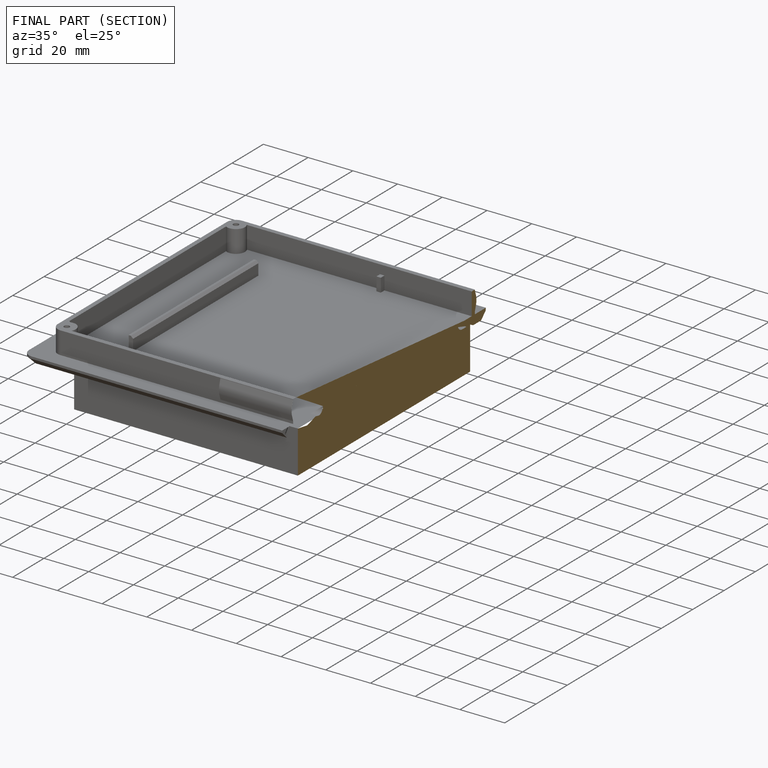
[diagram: finished part — half-section view (interior)]
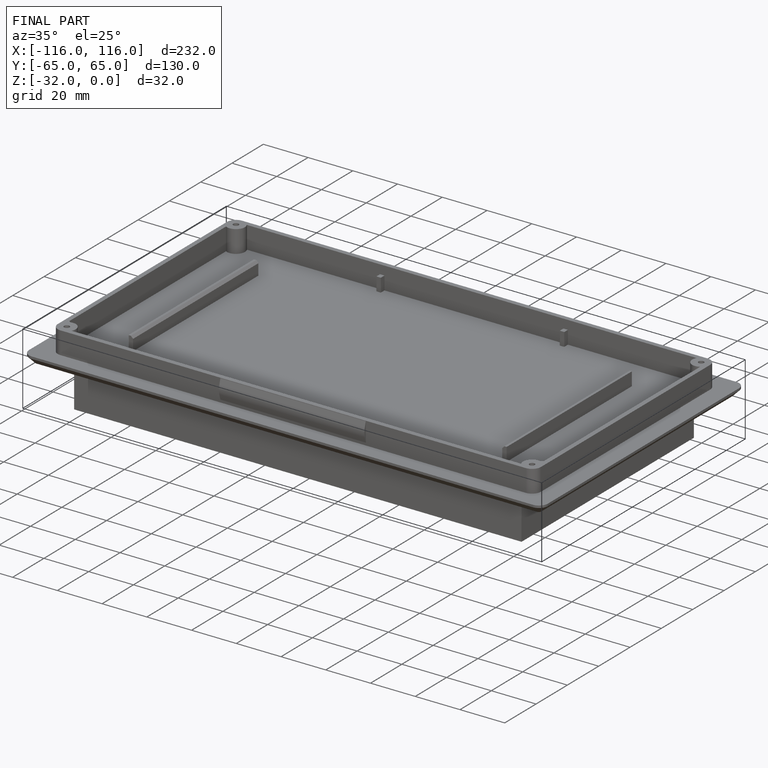
[diagram: finished part — iso view with bounding-box wireframe]
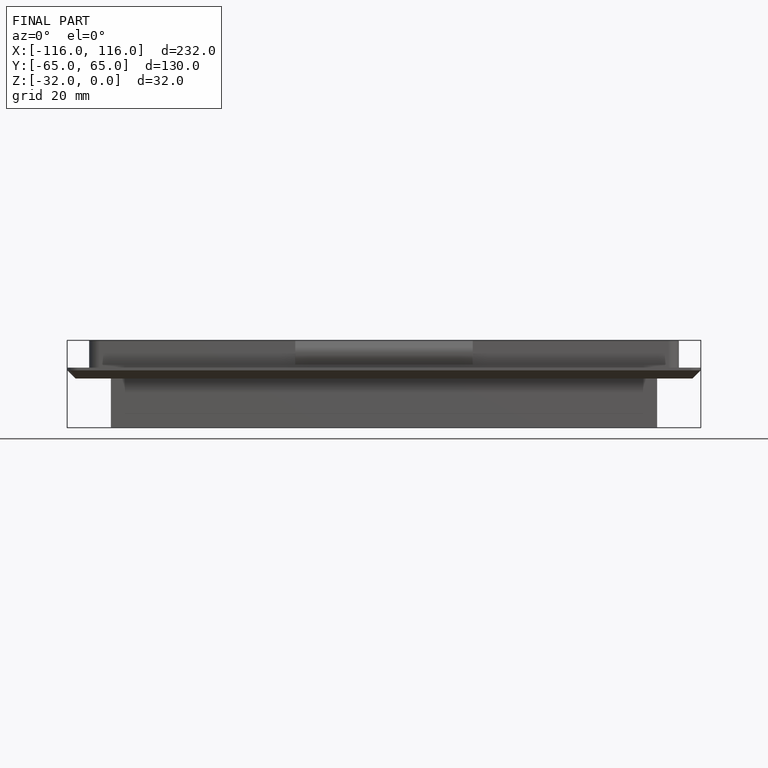
[diagram: finished part — front view with bounding-box wireframe]
